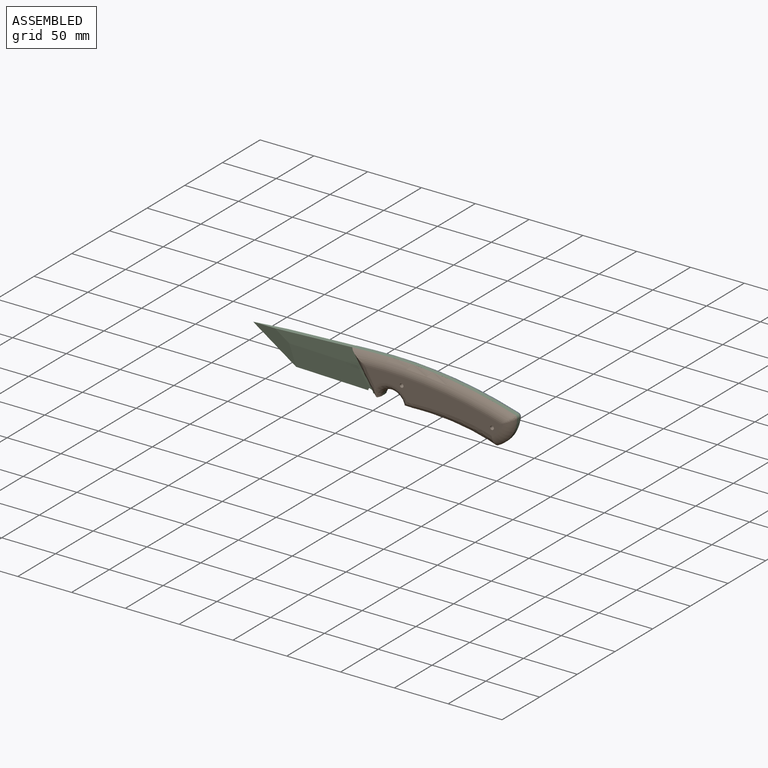
[diagram: assembled view]
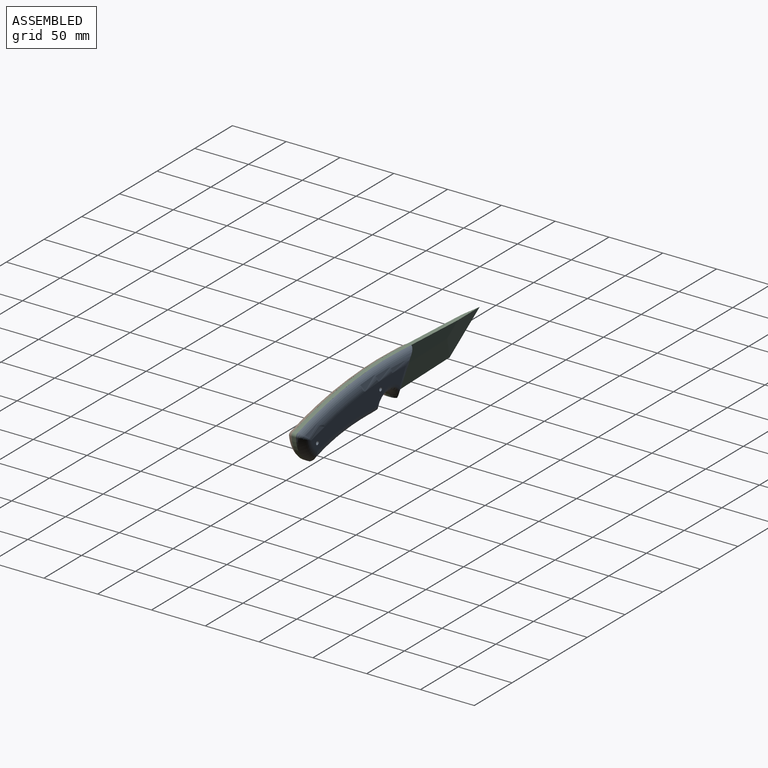
[diagram: assembled view, second angle]
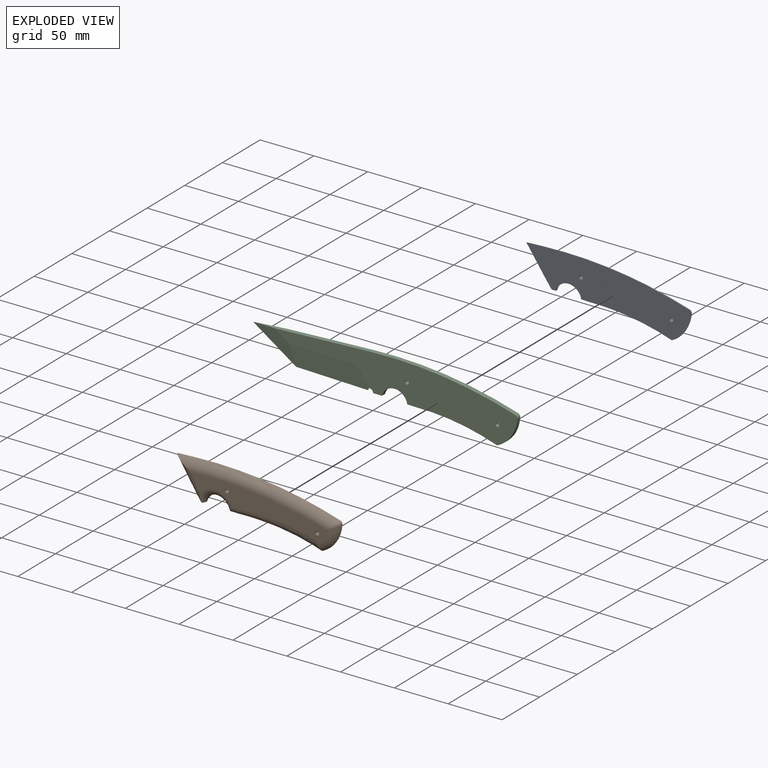
[diagram: exploded view]
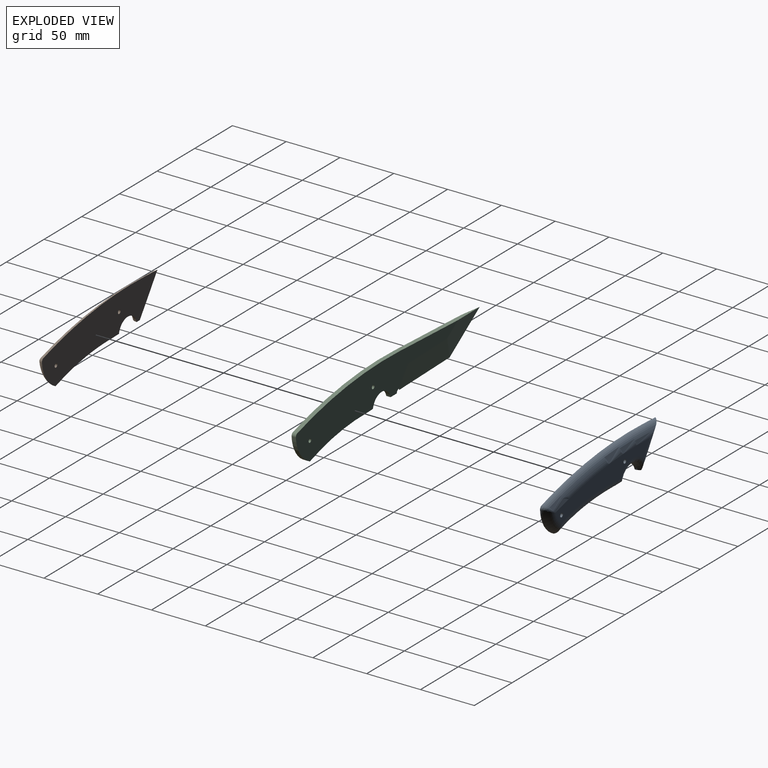
[diagram: exploded view, second angle]
ASSEMBLY  parts=3 mates=2
PART A: 16 faces, bbox 158.4x11.5x58 mm
  f0: plane 5.41x4.82mm, normal (0,0,-1), area 13.3mm2, adj f7,f14,f15
  f1: cylinder r=12mm len=23.44mm, axis (0,-1,0), area 16.3mm2, adj f2,f7,f15
  f2: plane 8.88x1.3mm, normal (-0.03,0,-1), area 8.3mm2, adj f1,f3,f7,f13
  f3: cylinder r=220mm len=19.13mm, axis (0,-1,0), area 8.5mm2, adj f2,f7,f11
  f4: cylinder r=1.75mm len=7mm, axis (0,-1,0), area 77mm2, adj f6,f7
  f5: cylinder r=1.75mm len=7mm, axis (0,-1,0), area 77mm2, adj f6,f7
  f6: plane 127.64x28.82mm, normal (0,1,0), area 1738.5mm2, adj f4,f5,f9,f10,f11,f12,f13,f14
  f7: plane 154.63x48.64mm, normal (0,-1,0), area 4452.7mm2, adj f0,f1,f2,f3,f4,f5,f8,f9
  f8: bspline ~10.47x7.48mm, area 21.2mm2, adj f7,f9,f10
  f9: torus R=22.55mm, axis (0,-1,0), area 310.3mm2, adj f6,f7,f8,f11
  f10: torus R=390.01mm, axis (0,-1,0), area 1674.7mm2, adj f6,f7,f8,f12
  f11: bspline ~78.87x18.56mm, area 898.4mm2, adj f3,f6,f7,f9,f13
  f12: cylinder r=10mm len=16.76mm, axis (-1,0,-0.05), area 117.5mm2, adj f6,f7,f10,f14
  f13: bspline ~9.18x6.24mm, area 61.7mm2, adj f2,f6,f11,f15
  f14: bspline ~42.49x32.08mm, area 373.1mm2, adj f0,f6,f7,f12,f15
  f15: bspline ~36.28x16.45mm, area 356.7mm2, adj f0,f1,f6,f13,f14
PART B: 16 faces, bbox 158.4x11.5x58 mm
  f0: plane 5.41x4.82mm, normal (0,0,-1), area 13.3mm2, adj f7,f14,f15
  f1: cylinder r=12mm len=23.44mm, axis (0,1,0), area 16.3mm2, adj f2,f7,f15
  f2: plane 8.88x1.3mm, normal (-0.03,0,-1), area 8.3mm2, adj f1,f3,f7,f13
  f3: cylinder r=220mm len=19.13mm, axis (0,1,0), area 8.5mm2, adj f2,f7,f11
  f4: cylinder r=1.75mm len=7mm, axis (0,1,0), area 77mm2, adj f6,f7
  f5: cylinder r=1.75mm len=7mm, axis (0,1,0), area 77mm2, adj f6,f7
  f6: plane 127.64x28.82mm, normal (0,-1,0), area 1738.5mm2, adj f4,f5,f9,f10,f11,f12,f13,f14
  f7: plane 154.63x48.64mm, normal (0,1,0), area 4452.7mm2, adj f0,f1,f2,f3,f4,f5,f8,f9
  f8: bspline ~10.47x7.48mm, area 21.2mm2, adj f7,f9,f10
  f9: torus R=22.55mm, axis (0,1,0), area 310.3mm2, adj f6,f7,f8,f11
  f10: torus R=390.01mm, axis (0,1,0), area 1674.7mm2, adj f6,f7,f8,f12
  f11: bspline ~78.87x18.56mm, area 898.4mm2, adj f3,f6,f7,f9,f13
  f12: cylinder r=10mm len=16.76mm, axis (-1,0,-0.05), area 117.5mm2, adj f6,f7,f10,f14
  f13: bspline ~9.18x6.24mm, area 61.7mm2, adj f2,f6,f11,f15
  f14: bspline ~42.49x32.08mm, area 373.1mm2, adj f0,f6,f7,f12,f15
  f15: bspline ~36.28x16.45mm, area 356.7mm2, adj f0,f1,f6,f13,f14
PART C: 19 faces, bbox 246.9x4x47.6 mm
  f0: plane 75.06x20.93mm, normal (0,-0.99,-0.1), area 1284.9mm2, adj f1,f2,f9,f11,f14
  f1: plane 70.04x20.63mm, normal (0,0.99,-0.1), area 1178.8mm2, adj f0,f2,f10,f12,f15
  f2: cylinder r=3mm len=6mm, axis (0,1,0), area 20.6mm2, adj f0,f1,f3,f9,f10,f14,f15
  f3: plane 8.25x4mm, normal (0,0,-1), area 33mm2, adj f2,f4,f9,f10
  f4: cylinder r=12mm len=23.44mm, axis (0,1,0), area 130.3mm2, adj f3,f9,f10,f13
  f5: cylinder r=32.09mm len=27.09mm, axis (0,1,0), area 138mm2, adj f6,f9,f10,f16
  f6: cylinder r=3mm len=4mm, axis (0,1,0), area 16.1mm2, adj f5,f7,f9,f10
  f7: cylinder r=399.55mm len=134.82mm, axis (0,1,0), area 546.2mm2, adj f6,f8,f9,f10
  f8: plane 110x5mm, normal (-0.05,0,1), area 387.1mm2, adj f7,f9,f10,f11,f12
  f9: plane 225.28x47.58mm, normal (0,-1,0), area 5382.7mm2, adj f0,f2,f3,f4,f5,f6,f7,f8
  f10: plane 215.28x47.58mm, normal (0,1,0), area 5282.1mm2, adj f1,f2,f3,f4,f5,f6,f7,f8
  f11: plane 40x28.2mm, normal (-0.09,-0.99,-0.13), area 424.1mm2, adj f0,f8,f9,f12
  f12: plane 46.08x28.65mm, normal (-0.06,0.99,-0.09), area 628.7mm2, adj f1,f8,f10,f11
  f13: plane 8.58x4mm, normal (-0.03,0,-1), area 34.3mm2, adj f4,f9,f10,f16
  f14: plane 16.32x11.76mm, normal (-0.81,0,-0.58), area 16.9mm2, adj f0,f2,f9
  f15: plane 16.32x11.76mm, normal (-0.81,0,-0.58), area 16.9mm2, adj f1,f2,f10
  f16: cylinder r=220mm len=75.05mm, axis (0,1,0), area 305.5mm2, adj f5,f9,f10,f13
  f17: cylinder r=1.75mm len=4mm, axis (0,-1,0), area 44mm2, adj f9,f10
  f18: cylinder r=1.75mm len=4mm, axis (0,-1,0), area 44mm2, adj f9,f10
PLACE A t=(0,-4,0)mm
PLACE B at identity
PLACE C at identity fixed
MATE fastened C.f18 <-> B.f4  axis (0,-1,0) through (34.32,-4,-16.71)mm
MATE fastened A.f5 <-> C.f17  axis (0,-1,0) through (118.32,0,-29.76)mm
